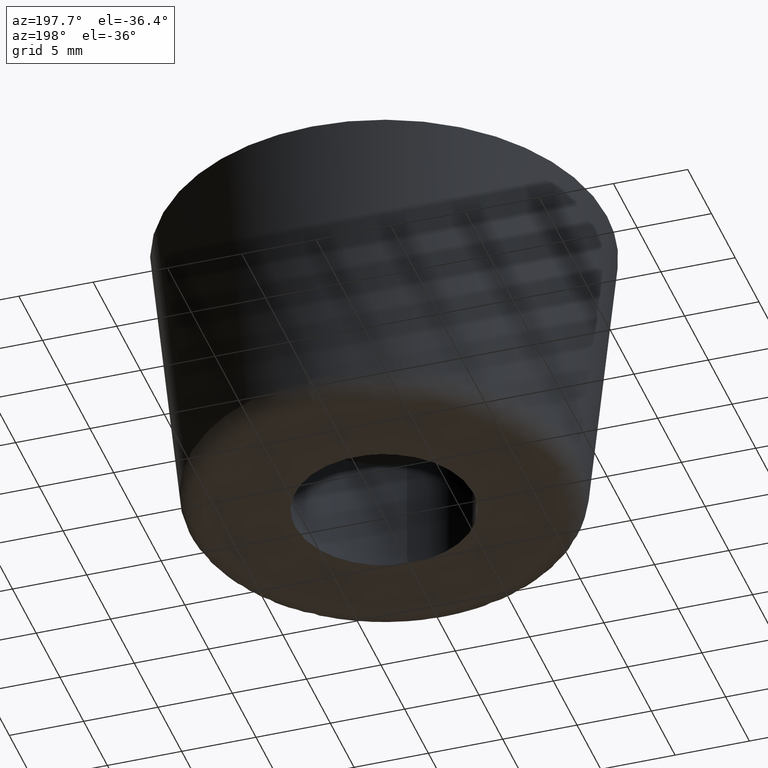
[diagram: clean part render]
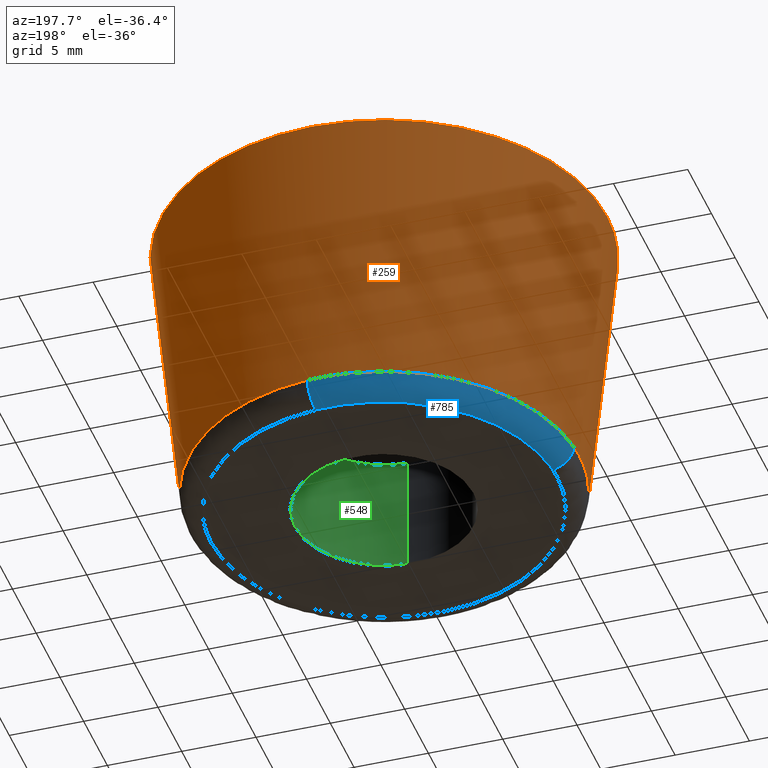
[diagram: same view with three faces highlighted in distinct colors, each labeled with its STEP entity id]
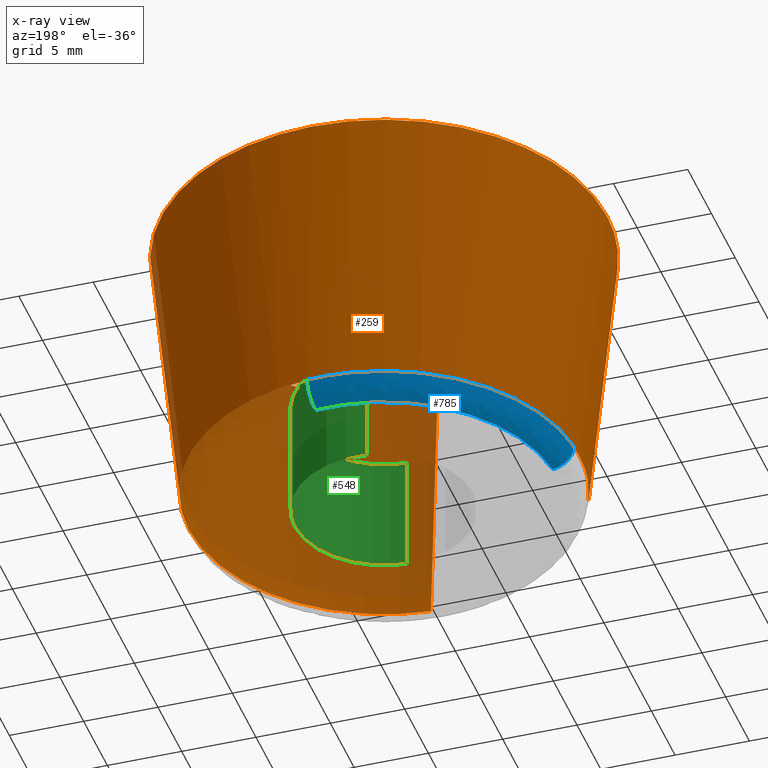
[diagram: x-ray of the same camera — body ghosted, the three highlighted faces saturated]
A machine part, auxiliary view with three faces highlighted in distinct colors.
The next image is the same camera in x-ray (body ghosted, the three faces saturated) — at least one of them is partly hidden behind the body in this view.
Their STEP definitions:

[orange] entity #259 — the highlighted face is a freeform B-spline surface patch.
#58=CARTESIAN_POINT('',(1.030555621959290,-13.094583491800741,1.350742231963600));
#59=VERTEX_POINT('',#58);
#60=CARTESIAN_POINT('',(-12.213839723886680,-4.832419833118689,1.350742433918875));
#61=VERTEX_POINT('',#60);
#77=CARTESIAN_POINT('',(1.176877817785791,-14.953760451905559,19.999997683682370));
#78=VERTEX_POINT('',#77);
#79=CARTESIAN_POINT('',(1.030555621959290,-13.094583491800741,1.350742231963600));
#80=CARTESIAN_POINT('',(1.176877817785791,-14.953760451905559,19.999997683682370));
#81=QUASI_UNIFORM_CURVE('',1,(#79,#80),.UNSPECIFIED.,.F.,.U.);
#82=EDGE_CURVE('',#59,#78,#81,.T.);
#84=CARTESIAN_POINT('',(-13.947968010895551,-5.518530671019443,19.999997466659359));
#85=VERTEX_POINT('',#84);
#101=CARTESIAN_POINT('',(-12.213839723886680,-4.832419833118689,1.350742433918875));
#102=CARTESIAN_POINT('',(-13.947968010895551,-5.518530671019443,19.999997466659359));
#103=QUASI_UNIFORM_CURVE('',1,(#101,#102),.UNSPECIFIED.,.F.,.U.);
#104=EDGE_CURVE('',#61,#85,#103,.T.);
#109=CARTESIAN_POINT('',(1.026908017833442,-13.048103519810960,0.884513582186998));
#110=CARTESIAN_POINT('',(14.075011537644400,-12.021195501977516,0.884513582186999));
#111=CARTESIAN_POINT('',(13.048103519810960,1.026908017833442,0.884513582186998));
#112=CARTESIAN_POINT('',(12.021195501977516,14.075011537644400,0.884513582186999));
#113=CARTESIAN_POINT('',(-1.026908017833442,13.048103519810960,0.884513582186998));
#114=CARTESIAN_POINT('',(-14.075011537644400,12.021195501977516,0.884513582186999));
#115=CARTESIAN_POINT('',(-13.048103519810960,-1.026908017833442,0.884513582186998));
#116=CARTESIAN_POINT('',(-12.893840262821103,-2.987008544415640,0.884513582186998));
#117=CARTESIAN_POINT('',(-12.170484751415133,-4.815272209996599,0.884513582186998));
#118=CARTESIAN_POINT('',(1.180635896369789,-15.001401418151570,20.477887160445331));
#119=CARTESIAN_POINT('',(16.182037314521356,-13.820765521781778,20.477887160445334));
#120=CARTESIAN_POINT('',(15.001401418151570,1.180635896369789,20.477887160445331));
#121=CARTESIAN_POINT('',(13.820765521781778,16.182037314521356,20.477887160445334));
#122=CARTESIAN_POINT('',(-1.180635896369789,15.001401418151570,20.477887160445331));
#123=CARTESIAN_POINT('',(-16.182037314521356,13.820765521781778,20.477887160445334));
#124=CARTESIAN_POINT('',(-15.001401418151570,-1.180635896369789,20.477887160445331));
#125=CARTESIAN_POINT('',(-14.824044989405989,-3.434162991287858,20.477887160445327));
#126=CARTESIAN_POINT('',(-13.992403335263864,-5.536117279430917,20.477887160445327));
#134=(BOUNDED_SURFACE()B_SPLINE_SURFACE(2,1,((#109,#118),(#110,#119),(#111,#120),(#112,#121),(#113,#122),(#114,#123),(#115,#124),(#116,#125),(#117,#126)),.UNSPECIFIED.,.F.,.F.,.U.)B_SPLINE_SURFACE_WITH_KNOTS((3,2,2,2,3),(2,2),(0.0,24.931992700870310,49.863985401740621,74.795978102610931,79.782376642784996),(0.0,19.691096798235819),.UNSPECIFIED.)GEOMETRIC_REPRESENTATION_ITEM()RATIONAL_B_SPLINE_SURFACE(((1.0,1.0),(0.707106781186548,0.707106781186548),(1.0,1.0),(0.707106781186548,0.707106781186548),(1.0,1.0),(0.707106781186548,0.707106781186548),(1.0,1.0),(0.941421356237310,0.941421356237310),(0.906274169979695,0.906274169979695)))REPRESENTATION_ITEM('')SURFACE());
#135=CARTESIAN_POINT('',(-13.135073999999980,0.0,1.350745000000000));
#136=VERTEX_POINT('',#135);
#137=CARTESIAN_POINT('',(-12.213839723886680,-4.832419833118689,1.350742433918874));
#138=CARTESIAN_POINT('',(-13.135073880694025,-2.504020181869384,1.350743716959438));
#139=CARTESIAN_POINT('',(-13.135073999999980,0.0,1.350745000000000));
#147=(BOUNDED_CURVE()B_SPLINE_CURVE(2,(#137,#138,#139),.UNSPECIFIED.,.F.,.U.)B_SPLINE_CURVE_WITH_KNOTS((3,3),(0.937532615029448,1.0),.UNSPECIFIED.)CURVE()GEOMETRIC_REPRESENTATION_ITEM()RATIONAL_B_SPLINE_CURVE((0.890203263798775,0.926814906180464,1.0))REPRESENTATION_ITEM(''));
#148=EDGE_CURVE('',#61,#136,#147,.T.);
#149=ORIENTED_EDGE('',*,*,#148,.F.);
#150=ORIENTED_EDGE('',*,*,#104,.T.);
#151=CARTESIAN_POINT('',(-15.0,0.0,20.0));
#152=VERTEX_POINT('',#151);
#153=CARTESIAN_POINT('',(-13.947968010895554,-5.518530671019443,19.999997466659359));
#154=CARTESIAN_POINT('',(-14.999999882216349,-2.859543005213578,19.999998733329683));
#155=CARTESIAN_POINT('',(-15.0,0.0,20.0));
#163=(BOUNDED_CURVE()B_SPLINE_CURVE(2,(#153,#154,#155),.UNSPECIFIED.,.F.,.U.)B_SPLINE_CURVE_WITH_KNOTS((3,3),(0.937532605541042,1.0),.UNSPECIFIED.)CURVE()GEOMETRIC_REPRESENTATION_ITEM()RATIONAL_B_SPLINE_CURVE((0.890203252676616,0.926814895064105,1.0))REPRESENTATION_ITEM(''));
#164=EDGE_CURVE('',#85,#152,#163,.T.);
#165=ORIENTED_EDGE('',*,*,#164,.T.);
#166=CARTESIAN_POINT('',(15.0,0.0,20.0));
#167=VERTEX_POINT('',#166);
#168=CARTESIAN_POINT('',(-15.0,0.0,20.0));
#169=CARTESIAN_POINT('',(-14.999999999999996,14.999999999999996,20.0));
#170=CARTESIAN_POINT('',(0.0,15.0,20.0));
#171=CARTESIAN_POINT('',(14.999999999999996,14.999999999999996,20.0));
#172=CARTESIAN_POINT('',(15.0,0.0,20.0));
#180=(BOUNDED_CURVE()B_SPLINE_CURVE(2,(#168,#169,#170,#171,#172),.UNSPECIFIED.,.F.,.U.)B_SPLINE_CURVE_WITH_KNOTS((3,2,3),(0.0,0.250000000000000,0.500000000000000),.UNSPECIFIED.)CURVE()GEOMETRIC_REPRESENTATION_ITEM()RATIONAL_B_SPLINE_CURVE((1.0,0.707106781186547,1.0,0.707106781186547,1.0))REPRESENTATION_ITEM(''));
#181=EDGE_CURVE('',#152,#167,#180,.T.);
#182=ORIENTED_EDGE('',*,*,#181,.T.);
#183=CARTESIAN_POINT('',(15.0,0.0,20.0));
#184=CARTESIAN_POINT('',(14.999999990913157,-13.865865258374738,19.999998841841183));
#185=CARTESIAN_POINT('',(1.176877817785791,-14.953760451905552,19.999997683682377));
#193=(BOUNDED_CURVE()B_SPLINE_CURVE(2,(#183,#184,#185),.UNSPECIFIED.,.F.,.U.)B_SPLINE_CURVE_WITH_KNOTS((3,3),(0.500000000000000,0.736331399219582),.UNSPECIFIED.)CURVE()GEOMETRIC_REPRESENTATION_ITEM()RATIONAL_B_SPLINE_CURVE((1.0,0.723120543103558,0.969723561915069))REPRESENTATION_ITEM(''));
#194=EDGE_CURVE('',#167,#78,#193,.T.);
#195=ORIENTED_EDGE('',*,*,#194,.T.);
#196=ORIENTED_EDGE('',*,*,#82,.F.);
#197=CARTESIAN_POINT('',(13.135073999999980,0.0,1.350745000000000));
#198=VERTEX_POINT('',#197);
#199=CARTESIAN_POINT('',(13.135073999999980,0.0,1.350745000000000));
#200=CARTESIAN_POINT('',(13.135073989141043,-12.141947033812311,1.350743615981800));
#201=CARTESIAN_POINT('',(1.030555621959290,-13.094583491800739,1.350742231963600));
#209=(BOUNDED_CURVE()B_SPLINE_CURVE(2,(#199,#200,#201),.UNSPECIFIED.,.F.,.U.)B_SPLINE_CURVE_WITH_KNOTS((3,3),(0.500000000000000,0.736331436581265),.UNSPECIFIED.)CURVE()GEOMETRIC_REPRESENTATION_ITEM()RATIONAL_B_SPLINE_CURVE((1.0,0.723120499331624,0.969723639886132))REPRESENTATION_ITEM(''));
#210=EDGE_CURVE('',#198,#59,#209,.T.);
#211=ORIENTED_EDGE('',*,*,#210,.F.);
#212=CARTESIAN_POINT('',(0.989423196236340,13.097756360902920,1.350744958231219));
#213=VERTEX_POINT('',#212);
#214=CARTESIAN_POINT('',(0.989423196236340,13.097756360902922,1.350744958231218));
#215=CARTESIAN_POINT('',(13.135073999999980,12.180256157799978,1.350745000000000));
#216=CARTESIAN_POINT('',(13.135073999999980,0.0,1.350745000000000));
#224=(BOUNDED_CURVE()B_SPLINE_CURVE(2,(#214,#215,#216),.UNSPECIFIED.,.F.,.U.)B_SPLINE_CURVE_WITH_KNOTS((3,3),(0.263129840737689,0.500000000000000),.UNSPECIFIED.)CURVE()GEOMETRIC_REPRESENTATION_ITEM()RATIONAL_B_SPLINE_CURVE((0.970850634527140,0.722489346451227,1.0))REPRESENTATION_ITEM(''));
#225=EDGE_CURVE('',#213,#198,#224,.T.);
#226=ORIENTED_EDGE('',*,*,#225,.F.);
#227=CARTESIAN_POINT('',(-13.097756360903629,0.989423196243246,1.350744958243485));
#228=VERTEX_POINT('',#227);
#229=CARTESIAN_POINT('',(-13.097756360903636,0.989423196243246,1.350744958243485));
#230=CARTESIAN_POINT('',(-12.180256157787268,13.135073999999980,1.350745000000000));
#231=CARTESIAN_POINT('',(0.0,13.135073999999980,1.350745000000000));
#232=CARTESIAN_POINT('',(0.495415344601110,13.135073999999980,1.350745000000000));
#233=CARTESIAN_POINT('',(0.989423196236340,13.097756360902922,1.350744958231218));
#241=(BOUNDED_CURVE()B_SPLINE_CURVE(2,(#229,#230,#231,#232,#233),.UNSPECIFIED.,.F.,.U.)B_SPLINE_CURVE_WITH_KNOTS((3,2,3),(0.013129840737868,0.250000000000000,0.263129840737689),.UNSPECIFIED.)CURVE()GEOMETRIC_REPRESENTATION_ITEM()RATIONAL_B_SPLINE_CURVE((0.970850634526766,0.722489346451436,1.0,0.984617434735321,0.970850634527140))REPRESENTATION_ITEM(''));
#242=EDGE_CURVE('',#228,#213,#241,.T.);
#243=ORIENTED_EDGE('',*,*,#242,.F.);
#244=CARTESIAN_POINT('',(-13.135073999999980,0.0,1.350745000000000));
#245=CARTESIAN_POINT('',(-13.135073999999978,0.495415344607953,1.350745000000001));
#246=CARTESIAN_POINT('',(-13.097756360903636,0.989423196243246,1.350744958243485));
#254=(BOUNDED_CURVE()B_SPLINE_CURVE(2,(#244,#245,#246),.UNSPECIFIED.,.F.,.U.)B_SPLINE_CURVE_WITH_KNOTS((3,3),(0.0,0.013129840737868),.UNSPECIFIED.)CURVE()GEOMETRIC_REPRESENTATION_ITEM()RATIONAL_B_SPLINE_CURVE((1.0,0.984617434735112,0.970850634526766))REPRESENTATION_ITEM(''));
#255=EDGE_CURVE('',#136,#228,#254,.T.);
#256=ORIENTED_EDGE('',*,*,#255,.F.);
#257=EDGE_LOOP('',(#149,#150,#165,#182,#195,#196,#211,#226,#243,#256));
#258=FACE_OUTER_BOUND('',#257,.T.);
#259=ADVANCED_FACE('',(#258),#134,.T.);

[blue] entity #785 — the highlighted face is a freeform B-spline surface patch.
#212=CARTESIAN_POINT('',(0.989423196236340,13.097756360902920,1.350744958231219));
#213=VERTEX_POINT('',#212);
#227=CARTESIAN_POINT('',(-13.097756360903629,0.989423196243246,1.350744958243485));
#228=VERTEX_POINT('',#227);
#229=CARTESIAN_POINT('',(-13.097756360903636,0.989423196243246,1.350744958243485));
#230=CARTESIAN_POINT('',(-12.180256157787268,13.135073999999980,1.350745000000000));
#231=CARTESIAN_POINT('',(0.0,13.135073999999980,1.350745000000000));
#232=CARTESIAN_POINT('',(0.495415344601110,13.135073999999980,1.350745000000000));
#233=CARTESIAN_POINT('',(0.989423196236340,13.097756360902922,1.350744958231218));
#241=(BOUNDED_CURVE()B_SPLINE_CURVE(2,(#229,#230,#231,#232,#233),.UNSPECIFIED.,.F.,.U.)B_SPLINE_CURVE_WITH_KNOTS((3,2,3),(0.013129840737868,0.250000000000000,0.263129840737689),.UNSPECIFIED.)CURVE()GEOMETRIC_REPRESENTATION_ITEM()RATIONAL_B_SPLINE_CURVE((0.970850634526766,0.722489346451436,1.0,0.984617434735321,0.970850634527140))REPRESENTATION_ITEM(''));
#242=EDGE_CURVE('',#228,#213,#241,.T.);
#665=CARTESIAN_POINT('',(0.876993764689428,11.609441443112891,-9.937312E-014));
#666=VERTEX_POINT('',#665);
#682=CARTESIAN_POINT('',(0.989423196236340,13.097756360902920,1.350744958231219));
#683=CARTESIAN_POINT('',(0.979248531805115,12.963066496886189,1.477586E-009));
#684=CARTESIAN_POINT('',(0.876993764689428,11.609441443112885,-9.937312E-014));
#692=(BOUNDED_CURVE()B_SPLINE_CURVE(2,(#682,#683,#684),.UNSPECIFIED.,.F.,.U.)B_SPLINE_CURVE_WITH_KNOTS((3,3),(-1.710024344260570,-0.277482477633152),.UNSPECIFIED.)CURVE()GEOMETRIC_REPRESENTATION_ITEM()RATIONAL_B_SPLINE_CURVE((0.888708382971118,0.660422433206934,0.892725170638497))REPRESENTATION_ITEM(''));
#693=EDGE_CURVE('',#213,#666,#692,.T.);
#700=CARTESIAN_POINT('',(-11.609441442593070,0.876993764607335,-9.951443E-014));
#701=VERTEX_POINT('',#700);
#702=CARTESIAN_POINT('',(-13.097756360903629,0.989423196243246,1.350744958243486));
#703=CARTESIAN_POINT('',(-12.963066496813882,0.979248531799653,5.282153E-010));
#704=CARTESIAN_POINT('',(-11.609441442593074,0.876993764607335,-9.951443E-014));
#712=(BOUNDED_CURVE()B_SPLINE_CURVE(2,(#702,#703,#704),.UNSPECIFIED.,.F.,.U.)B_SPLINE_CURVE_WITH_KNOTS((3,3),(-1.710024344278077,-0.277482476884927),.UNSPECIFIED.)CURVE()GEOMETRIC_REPRESENTATION_ITEM()RATIONAL_B_SPLINE_CURVE((0.888708382976698,0.660422433084860,0.892725170881163))REPRESENTATION_ITEM(''));
#713=EDGE_CURVE('',#228,#701,#712,.T.);
#748=CARTESIAN_POINT('',(-13.104347624911563,0.989921109718979,1.449970809352953));
#749=CARTESIAN_POINT('',(-12.114426515192587,14.094268734630544,1.449970809352954));
#750=CARTESIAN_POINT('',(0.989921109718979,13.104347624911563,1.449970809352953));
#751=CARTESIAN_POINT('',(-13.052805035603994,0.986027509009842,-0.098945501557196));
#752=CARTESIAN_POINT('',(-12.066777526594151,14.038832544613834,-0.098945501557196));
#753=CARTESIAN_POINT('',(0.986027509009841,13.052805035603994,-0.098945501557196));
#754=CARTESIAN_POINT('',(-11.510794185039192,0.869541810058451,0.003265826204082));
#755=CARTESIAN_POINT('',(-10.641252374980734,12.380335995097635,0.003265826204082));
#756=CARTESIAN_POINT('',(0.869541810058450,11.510794185039192,0.003265826204082));
#764=(BOUNDED_SURFACE()B_SPLINE_SURFACE(2,2,((#748,#751,#754),(#749,#752,#755),(#750,#753,#756)),.UNSPECIFIED.,.F.,.F.,.U.)B_SPLINE_SURFACE_WITH_KNOTS((3,3),(3,3),(0.0,21.773855745042781),(0.0,2.542835043858419),.UNSPECIFIED.)GEOMETRIC_REPRESENTATION_ITEM()RATIONAL_B_SPLINE_SURFACE(((0.912663320219089,0.636266896591309,0.917081305369118),(0.645350422667147,0.449908637224235,0.648474409925914),(0.912663320219089,0.636266896591309,0.917081305369118)))REPRESENTATION_ITEM('')SURFACE());
#765=CARTESIAN_POINT('',(-11.609441442593070,0.876993764607335,-9.951443E-014));
#766=CARTESIAN_POINT('',(-10.796198311609436,11.642518999999998,-9.947598E-014));
#767=CARTESIAN_POINT('',(0.0,11.642519000000000,-9.947598E-014));
#768=CARTESIAN_POINT('',(0.439120675161852,11.642519000000007,-9.947598E-014));
#769=CARTESIAN_POINT('',(0.876993764689428,11.609441443112885,-9.937312E-014));
#777=(BOUNDED_CURVE()B_SPLINE_CURVE(2,(#765,#766,#767,#768,#769),.UNSPECIFIED.,.F.,.U.)B_SPLINE_CURVE_WITH_KNOTS((3,2,3),(0.013129840738158,0.250000000000000,0.263129840739417),.UNSPECIFIED.)CURVE()GEOMETRIC_REPRESENTATION_ITEM()RATIONAL_B_SPLINE_CURVE((0.970850634526157,0.722489346451776,1.0,0.984617434733296,0.970850634523517))REPRESENTATION_ITEM(''));
#778=EDGE_CURVE('',#701,#666,#777,.T.);
#779=ORIENTED_EDGE('',*,*,#778,.F.);
#780=ORIENTED_EDGE('',*,*,#713,.F.);
#781=ORIENTED_EDGE('',*,*,#242,.T.);
#782=ORIENTED_EDGE('',*,*,#693,.T.);
#783=EDGE_LOOP('',(#779,#780,#781,#782));
#784=FACE_OUTER_BOUND('',#783,.T.);
#785=ADVANCED_FACE('',(#784),#764,.T.);

[green] entity #548 — the highlighted face is a freeform B-spline surface patch.
#446=CARTESIAN_POINT('',(-0.708205407940551,5.958057158181998,8.200000000000001));
#447=CARTESIAN_POINT('',(-0.537688371827866,5.978325692691634,8.199999999999999));
#448=CARTESIAN_POINT('',(-0.366291237209142,5.988808790531200,8.199999999999999));
#449=CARTESIAN_POINT('',(5.622517553322059,6.355100027740342,8.199999999999999));
#450=CARTESIAN_POINT('',(5.988808790531200,0.366291237209142,8.199999999999999));
#451=CARTESIAN_POINT('',(6.355100027740342,-5.622517553322059,8.199999999999999));
#452=CARTESIAN_POINT('',(0.366291237209142,-5.988808790531200,8.199999999999999));
#453=CARTESIAN_POINT('',(-0.708205407940551,5.958057158181998,-0.205000000000000));
#454=CARTESIAN_POINT('',(-0.537688371827866,5.978325692691634,-0.205000000000000));
#455=CARTESIAN_POINT('',(-0.366291237209142,5.988808790531200,-0.205000000000000));
#456=CARTESIAN_POINT('',(5.622517553322059,6.355100027740342,-0.205000000000000));
#457=CARTESIAN_POINT('',(5.988808790531200,0.366291237209142,-0.205000000000000));
#458=CARTESIAN_POINT('',(6.355100027740342,-5.622517553322059,-0.205000000000000));
#459=CARTESIAN_POINT('',(0.366291237209142,-5.988808790531200,-0.205000000000000));
#467=(BOUNDED_SURFACE()B_SPLINE_SURFACE(2,1,((#446,#453),(#447,#454),(#448,#455),(#449,#456),(#450,#457),(#451,#458),(#452,#459)),.UNSPECIFIED.,.F.,.F.,.U.)B_SPLINE_SURFACE_WITH_KNOTS((3,2,2,3),(2,2),(0.0,0.397645019878172,10.338770516832451,20.279896013786729),(0.0,8.404999999999999),.UNSPECIFIED.)GEOMETRIC_REPRESENTATION_ITEM()RATIONAL_B_SPLINE_SURFACE(((0.977505800795127,0.977505800795127),(0.988284271247462,0.988284271247462),(1.0,1.0),(0.707106781186548,0.707106781186548),(1.0,1.0),(0.707106781186548,0.707106781186548),(1.0,1.0)))REPRESENTATION_ITEM('')SURFACE());
#468=CARTESIAN_POINT('',(-0.708194922177014,5.958058404555227,1.448108E-015));
#469=VERTEX_POINT('',#468);
#470=CARTESIAN_POINT('',(6.0,0.0,0.0));
#471=VERTEX_POINT('',#470);
#472=CARTESIAN_POINT('',(-0.708194922177014,5.958058404555227,1.448108E-015));
#473=CARTESIAN_POINT('',(-0.355339419604000,6.000000000000001,0.0));
#474=CARTESIAN_POINT('',(0.0,6.0,0.0));
#475=CARTESIAN_POINT('',(6.0,6.0,0.0));
#476=CARTESIAN_POINT('',(6.0,0.0,0.0));
#484=(BOUNDED_CURVE()B_SPLINE_CURVE(2,(#472,#473,#474,#475,#476),.UNSPECIFIED.,.F.,.U.)B_SPLINE_CURVE_WITH_KNOTS((3,2,3),(0.229562770949563,0.250000000000000,0.500000000000000),.UNSPECIFIED.)CURVE()GEOMETRIC_REPRESENTATION_ITEM()RATIONAL_B_SPLINE_CURVE((0.956027337171368,0.976056296799159,1.0,0.707106781186548,1.0))REPRESENTATION_ITEM(''));
#485=EDGE_CURVE('',#469,#471,#484,.T.);
#486=ORIENTED_EDGE('',*,*,#485,.T.);
#487=CARTESIAN_POINT('',(0.366289338826585,-5.988808906640648,3.788636E-015));
#488=VERTEX_POINT('',#487);
#489=CARTESIAN_POINT('',(6.0,0.0,0.0));
#490=CARTESIAN_POINT('',(6.000000000000001,-5.644238193934905,0.0));
#491=CARTESIAN_POINT('',(0.366289338826585,-5.988808906640647,3.788636E-015));
#499=(BOUNDED_CURVE()B_SPLINE_CURVE(2,(#489,#490,#491),.UNSPECIFIED.,.F.,.U.)B_SPLINE_CURVE_WITH_KNOTS((3,3),(0.500000000000000,0.739333016937291),.UNSPECIFIED.)CURVE()GEOMETRIC_REPRESENTATION_ITEM()RATIONAL_B_SPLINE_CURVE((1.0,0.719603929203609,0.976072158895718))REPRESENTATION_ITEM(''));
#500=EDGE_CURVE('',#471,#488,#499,.T.);
#501=ORIENTED_EDGE('',*,*,#500,.T.);
#502=CARTESIAN_POINT('',(0.366289362214313,-5.988808905210208,8.0));
#503=VERTEX_POINT('',#502);
#504=CARTESIAN_POINT('',(0.366289362214313,-5.988808905210208,8.0));
#505=CARTESIAN_POINT('',(0.366289338826585,-5.988808906640648,3.788636E-015));
#506=QUASI_UNIFORM_CURVE('',1,(#504,#505),.UNSPECIFIED.,.F.,.U.);
#507=EDGE_CURVE('',#503,#488,#506,.T.);
#508=ORIENTED_EDGE('',*,*,#507,.F.);
#509=CARTESIAN_POINT('',(6.0,0.0,8.0));
#510=VERTEX_POINT('',#509);
#511=CARTESIAN_POINT('',(6.0,0.0,8.0));
#512=CARTESIAN_POINT('',(5.999999999999999,-5.644238171851620,8.0));
#513=CARTESIAN_POINT('',(0.366289362214313,-5.988808905210209,8.0));
#521=(BOUNDED_CURVE()B_SPLINE_CURVE(2,(#511,#512,#513),.UNSPECIFIED.,.F.,.U.)B_SPLINE_CURVE_WITH_KNOTS((3,3),(0.500000000000000,0.739333016263455),.UNSPECIFIED.)CURVE()GEOMETRIC_REPRESENTATION_ITEM()RATIONAL_B_SPLINE_CURVE((1.0,0.719603929993058,0.976072157451558))REPRESENTATION_ITEM(''));
#522=EDGE_CURVE('',#510,#503,#521,.T.);
#523=ORIENTED_EDGE('',*,*,#522,.F.);
#524=CARTESIAN_POINT('',(-0.708195051552524,5.958058389177445,8.0));
#525=VERTEX_POINT('',#524);
#526=CARTESIAN_POINT('',(-0.708195051552524,5.958058389177445,8.000000000000002));
#527=CARTESIAN_POINT('',(-0.355339484975592,5.999999999999999,8.0));
#528=CARTESIAN_POINT('',(0.0,6.0,8.0));
#529=CARTESIAN_POINT('',(6.0,6.0,8.0));
#530=CARTESIAN_POINT('',(6.0,0.0,8.0));
#538=(BOUNDED_CURVE()B_SPLINE_CURVE(2,(#526,#527,#528,#529,#530),.UNSPECIFIED.,.F.,.U.)B_SPLINE_CURVE_WITH_KNOTS((3,2,3),(0.229562767279762,0.250000000000000,0.500000000000000),.UNSPECIFIED.)CURVE()GEOMETRIC_REPRESENTATION_ITEM()RATIONAL_B_SPLINE_CURVE((0.956027329978387,0.976056292499719,1.0,0.707106781186548,1.0))REPRESENTATION_ITEM(''));
#539=EDGE_CURVE('',#525,#510,#538,.T.);
#540=ORIENTED_EDGE('',*,*,#539,.F.);
#541=CARTESIAN_POINT('',(-0.708195051552524,5.958058389177445,8.0));
#542=CARTESIAN_POINT('',(-0.708194922177014,5.958058404555227,1.448108E-015));
#543=QUASI_UNIFORM_CURVE('',1,(#541,#542),.UNSPECIFIED.,.F.,.U.);
#544=EDGE_CURVE('',#525,#469,#543,.T.);
#545=ORIENTED_EDGE('',*,*,#544,.T.);
#546=EDGE_LOOP('',(#486,#501,#508,#523,#540,#545));
#547=FACE_OUTER_BOUND('',#546,.T.);
#548=ADVANCED_FACE('',(#547),#467,.F.);